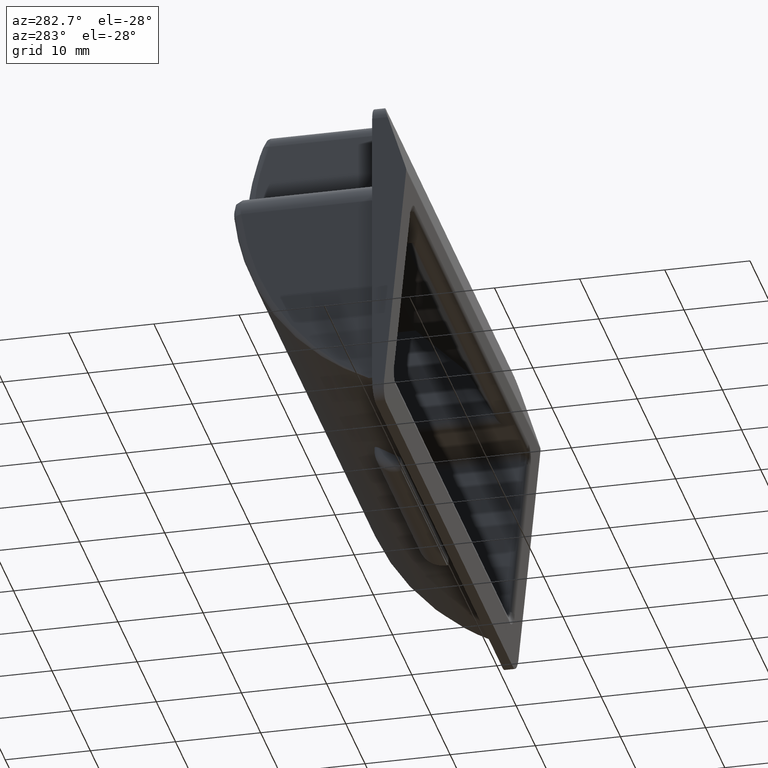
[diagram: clean part render]
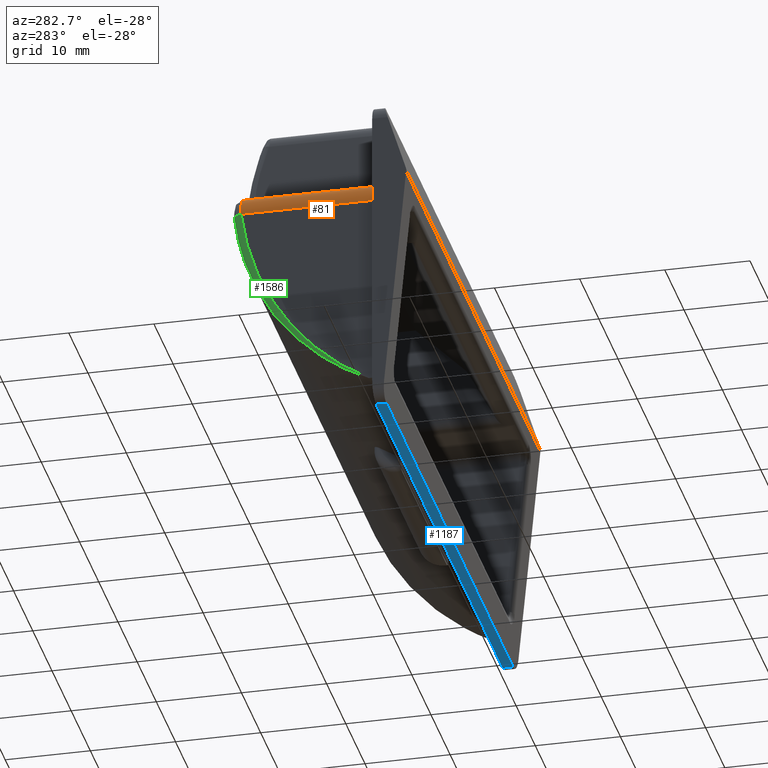
[diagram: same view with three faces highlighted in distinct colors, each labeled with its STEP entity id]
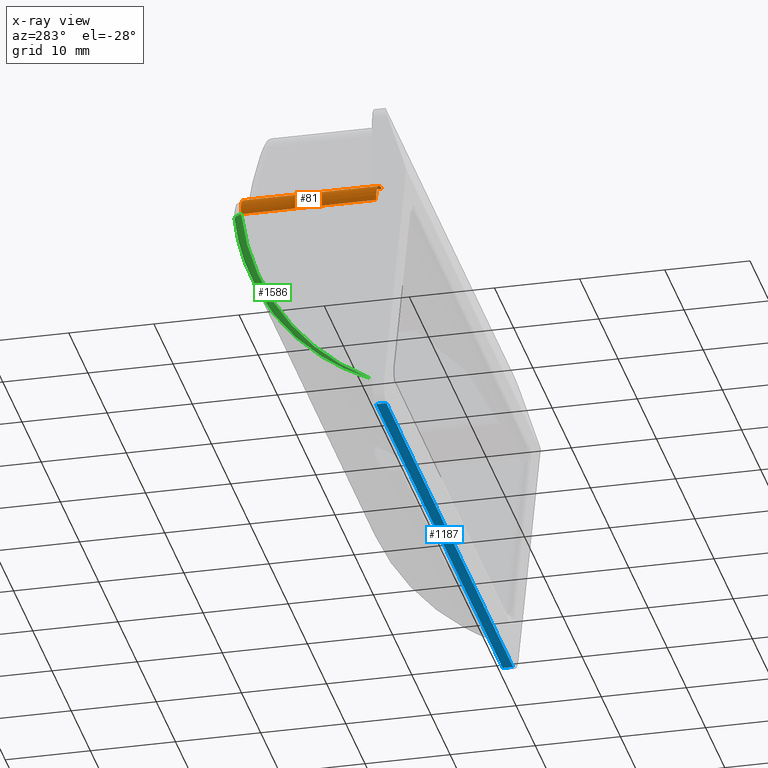
[diagram: x-ray of the same camera — body ghosted, the three highlighted faces saturated]
A machine part, auxiliary view with three faces highlighted in distinct colors.
The next image is the same camera in x-ray (body ghosted, the three faces saturated) — at least one of them is partly hidden behind the body in this view.
Their STEP definitions:

[orange] entity #81 — the highlighted cylindrical surface (edge-blend (fillet) strip) has radius 3 mm, axis along (0, -1, 0).
#21 = CARTESIAN_POINT ( 'NONE',  ( -32.69712364979911700, 15.91943457876399400, 8.112719543238517500 ) ) ;
#81 = ADVANCED_FACE ( 'NONE', ( #1116 ), #1027, .T. ) ;
#173 = DIRECTION ( 'NONE',  ( 0.0000000000000000000, 0.0000000000000000000, -1.000000000000000000 ) ) ;
#175 = CARTESIAN_POINT ( 'NONE',  ( -33.00000000000000000, 15.86270693517948000, 7.082505815775430600 ) ) ;
#186 = VERTEX_POINT ( 'NONE', #1063 ) ;
#466 = CARTESIAN_POINT ( 'NONE',  ( -33.00000000000000000, 1000.000000000000000, 6.749999999999920100 ) ) ;
#548 = DIRECTION ( 'NONE',  ( 0.0000000000000000000, -1.000000000000000000, 0.0000000000000000000 ) ) ;
#594 = B_SPLINE_CURVE_WITH_KNOTS ( 'NONE', 3,
 ( #2583, #1107, #2845, #2831, #2863, #2314, #21, #1217, #175, #1908 ),
 .UNSPECIFIED., .F., .F.,
 ( 4, 2, 2, 2, 4 ),
 ( 0.0000000000000000000, 0.2500000000000000000, 0.5000000000000000000, 0.7500000000000000000, 1.000000000000000000 ),
 .UNSPECIFIED. ) ;
#606 = EDGE_LOOP ( 'NONE', ( #2023, #1290, #1726, #2873 ) ) ;
#690 = VECTOR ( 'NONE', #548, 1000.000000000000000 ) ;
#725 = CARTESIAN_POINT ( 'NONE',  ( -30.00000000000000000, 1000.000000000000000, 6.749999999999920100 ) ) ;
#784 = EDGE_CURVE ( 'NONE', #2377, #3384, #594, .T. ) ;
#977 = DIRECTION ( 'NONE',  ( 0.0000000000000000000, -1.000000000000000000, 0.0000000000000000000 ) ) ;
#1027 = CYLINDRICAL_SURFACE ( 'NONE', #3149, 3.000000000000000000 ) ;
#1063 = CARTESIAN_POINT ( 'NONE',  ( -30.00000000000000000, 0.0000000000000000000, 9.750000000000000000 ) ) ;
#1107 = CARTESIAN_POINT ( 'NONE',  ( -30.45289234762194000, 15.98213638944282700, 9.749999999999918300 ) ) ;
#1116 = FACE_OUTER_BOUND ( 'NONE', #606, .T. ) ;
#1217 = CARTESIAN_POINT ( 'NONE',  ( -32.94412785965531800, 15.88360651230813800, 7.430875672815140800 ) ) ;
#1290 = ORIENTED_EDGE ( 'NONE', *, *, #784, .T. ) ;
#1387 = LINE ( 'NONE', #2692, #690 ) ;
#1417 = DIRECTION ( 'NONE',  ( 0.0000000000000000000, -1.000000000000000000, 0.0000000000000000000 ) ) ;
#1419 = CARTESIAN_POINT ( 'NONE',  ( -30.00000000000000000, 0.0000000000000000000, 6.749999999999920100 ) ) ;
#1422 = EDGE_CURVE ( 'NONE', #3384, #2311, #1737, .T. ) ;
#1554 = CARTESIAN_POINT ( 'NONE',  ( -33.00000000000000000, 0.0000000000000000000, 6.749999999999920100 ) ) ;
#1712 = DIRECTION ( 'NONE',  ( 0.0000000000000000000, 0.0000000000000000000, 1.000000000000000000 ) ) ;
#1726 = ORIENTED_EDGE ( 'NONE', *, *, #1422, .T. ) ;
#1737 = LINE ( 'NONE', #466, #2341 ) ;
#1908 = CARTESIAN_POINT ( 'NONE',  ( -33.00000000000000000, 15.83882181415010100, 6.749999999999920100 ) ) ;
#1923 = EDGE_CURVE ( 'NONE', #2377, #186, #1387, .T. ) ;
#2023 = ORIENTED_EDGE ( 'NONE', *, *, #1923, .F. ) ;
#2254 = CIRCLE ( 'NONE', #3134, 3.000000000000000000 ) ;
#2311 = VERTEX_POINT ( 'NONE', #1554 ) ;
#2314 = CARTESIAN_POINT ( 'NONE',  ( -32.50556349488846300, 15.93436306809107500, 8.445984711561113300 ) ) ;
#2341 = VECTOR ( 'NONE', #1417, 1000.000000000000000 ) ;
#2377 = VERTEX_POINT ( 'NONE', #3152 ) ;
#2501 = CARTESIAN_POINT ( 'NONE',  ( -33.00000000000000000, 15.83882181415010100, 6.749999999999920100 ) ) ;
#2583 = CARTESIAN_POINT ( 'NONE',  ( -30.00000000000000000, 15.98213715926644700, 9.750000000000000000 ) ) ;
#2692 = CARTESIAN_POINT ( 'NONE',  ( -30.00000000000000000, 1000.000000000000000, 9.750000000000000000 ) ) ;
#2724 = EDGE_CURVE ( 'NONE', #186, #2311, #2254, .T. ) ;
#2831 = CARTESIAN_POINT ( 'NONE',  ( -31.65487607590719000, 15.96720636046934200, 9.287743365615357400 ) ) ;
#2845 = CARTESIAN_POINT ( 'NONE',  ( -30.88905108553486300, 15.97915007571880100, 9.646263866370596000 ) ) ;
#2863 = CARTESIAN_POINT ( 'NONE',  ( -31.98461769397786700, 15.95824895894378900, 9.033748054737348100 ) ) ;
#2873 = ORIENTED_EDGE ( 'NONE', *, *, #2724, .F. ) ;
#3134 = AXIS2_PLACEMENT_3D ( 'NONE', #1419, #3261, #1712 ) ;
#3149 = AXIS2_PLACEMENT_3D ( 'NONE', #725, #977, #173 ) ;
#3152 = CARTESIAN_POINT ( 'NONE',  ( -30.00000000000000000, 15.98213715926644700, 9.750000000000000000 ) ) ;
#3261 = DIRECTION ( 'NONE',  ( -0.0000000000000000000, -1.000000000000000000, -0.0000000000000000000 ) ) ;
#3384 = VERTEX_POINT ( 'NONE', #2501 ) ;

[blue] entity #1187 — the highlighted planar face has unit normal (0, 0, 1).
#29 = EDGE_CURVE ( 'NONE', #1060, #2397, #2683, .T. ) ;
#115 = PLANE ( 'NONE',  #653 ) ;
#138 = DIRECTION ( 'NONE',  ( 0.0000000000000000000, 1.000000000000000000, 0.0000000000000000000 ) ) ;
#159 = ORIENTED_EDGE ( 'NONE', *, *, #385, .T. ) ;
#184 = VECTOR ( 'NONE', #628, 1000.000000000000000 ) ;
#189 = DIRECTION ( 'NONE',  ( 0.0000000000000000000, 0.0000000000000000000, 1.000000000000000000 ) ) ;
#385 = EDGE_CURVE ( 'NONE', #2397, #1149, #1615, .T. ) ;
#628 = DIRECTION ( 'NONE',  ( -1.000000000000000000, 0.0000000000000000000, 0.0000000000000000000 ) ) ;
#653 = AXIS2_PLACEMENT_3D ( 'NONE', #665, #189, #1405 ) ;
#665 = CARTESIAN_POINT ( 'NONE',  ( 965.0000000000000000, -1.214746215283180100, -19.75000000000000000 ) ) ;
#805 = VERTEX_POINT ( 'NONE', #1274 ) ;
#1060 = VERTEX_POINT ( 'NONE', #2265 ) ;
#1149 = VERTEX_POINT ( 'NONE', #3337 ) ;
#1187 = ADVANCED_FACE ( 'NONE', ( #2819 ), #115, .F. ) ;
#1274 = CARTESIAN_POINT ( 'NONE',  ( -33.00000000000000000, 0.0000000000000000000, -19.75000000000000000 ) ) ;
#1314 = CARTESIAN_POINT ( 'NONE',  ( 33.00000000000000000, -1.214746215283180100, -19.75000000000000000 ) ) ;
#1405 = DIRECTION ( 'NONE',  ( 1.000000000000000000, 0.0000000000000000000, 0.0000000000000000000 ) ) ;
#1481 = VECTOR ( 'NONE', #138, 1000.000000000000000 ) ;
#1615 = LINE ( 'NONE', #2900, #184 ) ;
#1623 = EDGE_LOOP ( 'NONE', ( #1682, #2565, #159, #3034 ) ) ;
#1682 = ORIENTED_EDGE ( 'NONE', *, *, #2062, .F. ) ;
#1919 = VECTOR ( 'NONE', #3330, 1000.000000000000000 ) ;
#1996 = CARTESIAN_POINT ( 'NONE',  ( 33.00000000000000000, -1.214746215283180100, -19.75000000000000000 ) ) ;
#2062 = EDGE_CURVE ( 'NONE', #1060, #805, #3157, .T. ) ;
#2222 = LINE ( 'NONE', #2515, #1481 ) ;
#2230 = EDGE_CURVE ( 'NONE', #1149, #805, #2222, .T. ) ;
#2235 = DIRECTION ( 'NONE',  ( -1.000000000000000000, 0.0000000000000000000, 0.0000000000000000000 ) ) ;
#2265 = CARTESIAN_POINT ( 'NONE',  ( 33.00000000000000000, 0.0000000000000000000, -19.75000000000000000 ) ) ;
#2397 = VERTEX_POINT ( 'NONE', #1314 ) ;
#2486 = CARTESIAN_POINT ( 'NONE',  ( 965.0000000000000000, 0.0000000000000000000, -19.75000000000000000 ) ) ;
#2515 = CARTESIAN_POINT ( 'NONE',  ( -33.00000000000000000, -1.214746215283180100, -19.75000000000000000 ) ) ;
#2565 = ORIENTED_EDGE ( 'NONE', *, *, #29, .T. ) ;
#2683 = LINE ( 'NONE', #1996, #1919 ) ;
#2819 = FACE_OUTER_BOUND ( 'NONE', #1623, .T. ) ;
#2900 = CARTESIAN_POINT ( 'NONE',  ( 965.0000000000000000, -1.214746215283180100, -19.75000000000000000 ) ) ;
#3034 = ORIENTED_EDGE ( 'NONE', *, *, #2230, .T. ) ;
#3157 = LINE ( 'NONE', #2486, #3234 ) ;
#3234 = VECTOR ( 'NONE', #2235, 1000.000000000000000 ) ;
#3330 = DIRECTION ( 'NONE',  ( -0.0000000000000000000, -1.000000000000000000, -0.0000000000000000000 ) ) ;
#3337 = CARTESIAN_POINT ( 'NONE',  ( -33.00000000000000000, -1.214746215283180100, -19.75000000000000000 ) ) ;

[green] entity #1586 — the highlighted face is a freeform B-spline surface patch.
#176 = CARTESIAN_POINT ( 'NONE',  ( -32.99999999998737400, 16.70300885054731000, 5.435982975352797700 ) ) ;
#200 = CARTESIAN_POINT ( 'NONE',  ( -33.00000000000000000, 14.68729622291481900, 1.006148619472976100 ) ) ;
#263 = EDGE_LOOP ( 'NONE', ( #415, #1934, #2293 ) ) ;
#415 = ORIENTED_EDGE ( 'NONE', *, *, #496, .F. ) ;
#425 = CARTESIAN_POINT ( 'NONE',  ( -33.00000000000000000, 7.534895445766829300, -11.13803999911724000 ) ) ;
#462 = CARTESIAN_POINT ( 'NONE',  ( -33.00000000000000000, 13.46178440313971900, -2.304620486128470300 ) ) ;
#477 = CARTESIAN_POINT ( 'NONE',  ( -32.99999999996208500, 14.73048251072135900, -1.561708938994409900 ) ) ;
#490 = CARTESIAN_POINT ( 'NONE',  ( -33.00000000003788600, 15.58227841751168400, 0.7116720753275827000 ) ) ;
#496 = EDGE_CURVE ( 'NONE', #2766, #1850, #2258, .T. ) ;
#506 = CARTESIAN_POINT ( 'NONE',  ( -33.00000000000000000, 13.91355925580232100, -1.214764601391720200 ) ) ;
#557 = CARTESIAN_POINT ( 'NONE',  ( -33.00000000000000000, 14.66639341863139700, 1.010287550262602300 ) ) ;
#713 = CARTESIAN_POINT ( 'NONE',  ( -33.00000000000000000, 8.352121328734279300, -10.26156907911280100 ) ) ;
#722 = CARTESIAN_POINT ( 'NONE',  ( -33.00000000000000000, 15.83882181415010100, 6.749999999999909400 ) ) ;
#728 = CARTESIAN_POINT ( 'NONE',  ( -32.35937499997225300, 11.08082831297910100, -7.849682348343431000 ) ) ;
#736 = EDGE_CURVE ( 'NONE', #3384, #2766, #1181, .T. ) ;
#739 = CARTESIAN_POINT ( 'NONE',  ( -33.00000000000000000, 15.52224005438175100, 4.426499564255235200 ) ) ;
#753 = CARTESIAN_POINT ( 'NONE',  ( -32.69140625003269900, 5.983033610392419100, -13.03341406688880100 ) ) ;
#768 = CARTESIAN_POINT ( 'NONE',  ( -32.99999999998306800, 15.93671292466537900, 1.875133312841296600 ) ) ;
#806 = CARTESIAN_POINT ( 'NONE',  ( -32.09788617139341200, 14.97129753416764300, -0.9077459231806712700 ) ) ;
#837 = CARTESIAN_POINT ( 'NONE',  ( -32.99999999999999300, 11.52667708045554600, -5.960172067417482300 ) ) ;
#883 = CARTESIAN_POINT ( 'NONE',  ( -32.95833394175724600, 1.570747065032365400, -15.89156144936238700 ) ) ;
#956 = CARTESIAN_POINT ( 'NONE',  ( -33.00000000000000000, 11.85230490039609900, -5.462413615348560300 ) ) ;
#971 = CARTESIAN_POINT ( 'NONE',  ( -32.11328124996140300, 14.73048251070474100, -1.561708939002834900 ) ) ;
#979 = CARTESIAN_POINT ( 'NONE',  ( -32.00781250002545200, 16.49707942486910300, 4.237294799419046000 ) ) ;
#1005 = CARTESIAN_POINT ( 'NONE',  ( -32.11053063719536000, 14.77735347659213400, -1.391334043617856700 ) ) ;
#1032 = CARTESIAN_POINT ( 'NONE',  ( -32.12226334355073500, 14.59953566770989000, -1.806677427390380700 ) ) ;
#1047 = CARTESIAN_POINT ( 'NONE',  ( -32.43573357075636200, 9.935529404512880800, -9.229905427259998500 ) ) ;
#1066 = CARTESIAN_POINT ( 'NONE',  ( -32.14692154667577000, 14.22804050156225800, -2.637826889430956900 ) ) ;
#1096 = CARTESIAN_POINT ( 'NONE',  ( -32.16495073597828000, 13.95922318210752300, -3.192555309369975900 ) ) ;
#1110 = CARTESIAN_POINT ( 'NONE',  ( -32.18518342426629900, 13.65912493573377200, -3.763315262153595700 ) ) ;
#1132 = CARTESIAN_POINT ( 'NONE',  ( -32.18571791029253100, 13.65119848343781300, -3.778353586479034700 ) ) ;
#1181 = B_SPLINE_CURVE_WITH_KNOTS ( 'NONE', 3,
 ( #1762, #1619, #1897, #1291, #1477, #2626, #2051, #2102, #557, #3382, #3114, #2116, #2135, #2148, #2172, #2294, #2303, #2363, #2409, #837, #3195, #2555, #2567, #2808, #2634, #2660, #2897, #2909, #2921, #3035, #2342, #2933, #2950, #3048, #3057, #3069, #3083, #3143, #3165, #3178, #3331, #3344, #3358 ),
 .UNSPECIFIED., .F., .F.,
 ( 4, 1, 2, 2, 1, 2, 2, 1, 2, 2, 1, 1, 2, 2, 1, 1, 2, 2, 1, 1, 2, 2, 1, 1, 2, 2, 4 ),
 ( 0.0000000000000000000, 0.06249999999999963900, 0.09374999999999943100, 0.1249999999999991800, 0.1874999999999986700, 0.2187499999999984200, 0.2499999999999981100, 0.3124999999999975000, 0.3437499999999971700, 0.3749999999999968900, 0.4374999999999963400, 0.4687499999999960000, 0.4843749999999959500, 0.4999999999999958400, 0.5624999999999956700, 0.5937499999999955600, 0.6093749999999955600, 0.6249999999999956700, 0.6874999999999958900, 0.7187499999999961100, 0.7343749999999962300, 0.7499999999999963400, 0.8124999999999971100, 0.8437499999999975600, 0.8593749999999976700, 0.8749999999999977800, 1.000000000000000000 ),
 .UNSPECIFIED. ) ;
#1218 = CARTESIAN_POINT ( 'NONE',  ( -33.00000000002949500, 1.933522285790687700, -15.71233329219640500 ) ) ;
#1226 = CARTESIAN_POINT ( 'NONE',  ( -32.22265624996064300, 13.10331300630586100, -4.820419708547940600 ) ) ;
#1243 = CARTESIAN_POINT ( 'NONE',  ( -32.00000000000000000, 16.83306545036974800, 6.642857142857049100 ) ) ;
#1255 = CARTESIAN_POINT ( 'NONE',  ( -33.00000000002103200, 5.983033610333687400, -13.03341406685945200 ) ) ;
#1256 = CARTESIAN_POINT ( 'NONE',  ( -32.18686987823741700, 13.63411693483496200, -3.810692584404753400 ) ) ;
#1265 = CARTESIAN_POINT ( 'NONE',  ( -32.99999999999571500, 14.23312463766108100, -2.671619303463058400 ) ) ;
#1279 = CARTESIAN_POINT ( 'NONE',  ( -32.18860220030714500, 13.60843336212197100, -3.859205940745189100 ) ) ;
#1291 = CARTESIAN_POINT ( 'NONE',  ( -33.00000000000000000, 15.50141306488617200, 4.428475570965503000 ) ) ;
#1293 = CARTESIAN_POINT ( 'NONE',  ( -32.23339931288334300, 12.94584447670199300, -5.041786039647865500 ) ) ;
#1318 = CARTESIAN_POINT ( 'NONE',  ( -32.20823897334575700, 13.31770558223269800, -4.393407036273936600 ) ) ;
#1345 = CARTESIAN_POINT ( 'NONE',  ( -32.26538173475830700, 12.47334413442856300, -5.819964369642259600 ) ) ;
#1354 = CARTESIAN_POINT ( 'NONE',  ( -32.28819502803330000, 12.13621625080715600, -6.338480330854694400 ) ) ;
#1368 = CARTESIAN_POINT ( 'NONE',  ( -32.31325953037391900, 11.76458455272181600, -6.870616952640507900 ) ) ;
#1394 = CARTESIAN_POINT ( 'NONE',  ( -32.08885943712257900, 15.11093444546394300, -0.5456112022715115000 ) ) ;
#1412 = CARTESIAN_POINT ( 'NONE',  ( -32.99999999999995700, 16.83306545036979800, 6.642857142857042000 ) ) ;
#1477 = CARTESIAN_POINT ( 'NONE',  ( -33.00000000000000700, 15.38967039067029700, 3.853877563615560200 ) ) ;
#1487 = CARTESIAN_POINT ( 'NONE',  ( -33.00000000000000000, 15.71325180490025100, 5.584759628465319800 ) ) ;
#1491 = CARTESIAN_POINT ( 'NONE',  ( -33.00000000000000000, 1.905856945239280000, -15.65628840138394800 ) ) ;
#1519 = CARTESIAN_POINT ( 'NONE',  ( -32.08676767984025700, 15.14345456861964200, -0.4594668332559334600 ) ) ;
#1521 = CARTESIAN_POINT ( 'NONE',  ( -33.00000000000000000, 0.8452325786653289700, -16.25000000000000000 ) ) ;
#1538 = CARTESIAN_POINT ( 'NONE',  ( -33.00000000000000000, 2.925545588159634800, -14.99769232009196100 ) ) ;
#1556 = CARTESIAN_POINT ( 'NONE',  ( -32.08638508796664700, 15.14940901070201200, -0.4436247314269767800 ) ) ;
#1558 = CARTESIAN_POINT ( 'NONE',  ( -32.31389655085074300, 11.75513856594774100, -6.884113112420550400 ) ) ;
#1583 = CARTESIAN_POINT ( 'NONE',  ( -32.31529735817435500, 11.73436518041930300, -6.913740180604082600 ) ) ;
#1586 = ADVANCED_FACE ( 'NONE', ( #1769 ), #1986, .T. ) ;
#1619 = CARTESIAN_POINT ( 'NONE',  ( -33.00000000000000000, 15.77577333886729800, 6.165120926145733400 ) ) ;
#1622 = CARTESIAN_POINT ( 'NONE',  ( -32.31740282563262000, 11.70313922333355600, -6.958186267698564200 ) ) ;
#1637 = CARTESIAN_POINT ( 'NONE',  ( -32.32234537834563100, 11.62981652687872700, -7.061930695507650000 ) ) ;
#1696 = CARTESIAN_POINT ( 'NONE',  ( -32.81803509572033300, 3.925341268151046200, -14.48602051514421200 ) ) ;
#1762 = CARTESIAN_POINT ( 'NONE',  ( -33.00000000000000000, 15.83882181415010100, 6.749999999999920100 ) ) ;
#1769 = FACE_OUTER_BOUND ( 'NONE', #263, .T. ) ;
#1794 = CARTESIAN_POINT ( 'NONE',  ( -32.46474636302329500, 9.495735464020858900, -9.716220784894781900 ) ) ;
#1809 = CARTESIAN_POINT ( 'NONE',  ( -32.99999999999995700, 16.83306545036979800, 6.642857142857042000 ) ) ;
#1811 = CARTESIAN_POINT ( 'NONE',  ( -32.46543531374415200, 9.485289535579569900, -9.727747517495135600 ) ) ;
#1822 = CARTESIAN_POINT ( 'NONE',  ( -32.48613797349868500, 9.170902971915939600, -10.06991771483928800 ) ) ;
#1850 = VERTEX_POINT ( 'NONE', #3188 ) ;
#1861 = CARTESIAN_POINT ( 'NONE',  ( -32.46700796882515000, 9.461440590692435000, -9.754022214793339500 ) ) ;
#1874 = CARTESIAN_POINT ( 'NONE',  ( -32.22311142526452000, 13.09781511345535800, -4.782322274852390400 ) ) ;
#1885 = CARTESIAN_POINT ( 'NONE',  ( -32.46937148028364800, 9.425591185590823400, -9.793445301206386200 ) ) ;
#1897 = CARTESIAN_POINT ( 'NONE',  ( -33.00000000000000000, 15.65685352647670700, 5.292942848616495300 ) ) ;
#1912 = CARTESIAN_POINT ( 'NONE',  ( -32.49597244162988800, 9.021046652179679300, -10.22841614604942400 ) ) ;
#1921 = CARTESIAN_POINT ( 'NONE',  ( -32.37121103321782600, 10.90278720953912000, -8.041976532501838200 ) ) ;
#1934 = ORIENTED_EDGE ( 'NONE', *, *, #736, .F. ) ;
#1948 = CARTESIAN_POINT ( 'NONE',  ( -32.81573775007417000, 3.963166424170680100, -14.46110500753159100 ) ) ;
#1967 = CARTESIAN_POINT ( 'NONE',  ( -33.00000000000000000, 0.8452325786653279700, -16.25000000000000000 ) ) ;
#1986 =( BOUNDED_SURFACE ( )  B_SPLINE_SURFACE ( 2, 3, ( 
 ( #2087, #3049, #3319, #2282, #753, #2568, #2846, #2103, #728, #3400, #1226, #2596, #971, #2040, #3385, #979, #2584, #1243 ),
 ( #2027, #1218, #2832, #3332, #1255, #3115, #3103, #2315, #2295, #2796, #3359, #1265, #477, #490, #768, #2329, #176, #1809 ),
 ( #1521, #1491, #1538, #2809, #2556, #425, #713, #2821, #3070, #956, #2865, #462, #506, #200, #3084, #739, #1487, #722 ) ),
 .UNSPECIFIED., .F., .F., .F. ) 
 B_SPLINE_SURFACE_WITH_KNOTS ( ( 3, 3 ),
 ( 4, 2, 2, 2, 2, 2, 2, 2, 4 ),
 ( 0.0000000000000000000, 1.000000000000000000 ),
 ( 0.4588742050141179600, 0.5844458557239810000, 0.7100175064338439800, 0.8355891571437080700, 0.9611608078535709400, 1.086732458563433900, 1.212304109273298000, 1.337875759983162100, 1.463447410693024000 ),
 .UNSPECIFIED. ) 
 GEOMETRIC_REPRESENTATION_ITEM ( )  RATIONAL_B_SPLINE_SURFACE ( (
 ( 1.000000000000000000, 1.000000000000000000, 1.000000000000000000, 1.000000000000000000, 1.000000000000000000, 1.000000000000000000, 1.000000000000000000, 1.000000000000000000, 1.000000000000000000, 1.000000000000000000, 1.000000000000000000, 1.000000000000000000, 1.000000000000000000, 1.000000000000000000, 1.000000000000000000, 1.000000000000000000, 1.000000000000000000, 1.000000000000000000),
 ( 0.7071067811865480200, 0.7071067811867239900, 0.7071067811865520100, 0.7071067811865520100, 0.7071067811864870700, 0.7071067811864870700, 0.7071067811865030500, 0.7071067811865030500, 0.7071067811865590100, 0.7071067811865590100, 0.7071067811865720000, 0.7071067811865720000, 0.7071067811865670000, 0.7071067811865670000, 0.7071067811865460200, 0.7071067811865460200, 0.7071067811865220400, 0.7071067811865220400),
 ( 1.000000000000000000, 1.000000000000000000, 1.000000000000000000, 1.000000000000000000, 1.000000000000000000, 1.000000000000000000, 1.000000000000000000, 1.000000000000000000, 1.000000000000000000, 1.000000000000000000, 1.000000000000000000, 1.000000000000000000, 1.000000000000000000, 1.000000000000000000, 1.000000000000000000, 1.000000000000000000, 1.000000000000000000, 1.000000000000000000) ) ) 
 REPRESENTATION_ITEM ( '' )  SURFACE ( )  );
#2024 = EDGE_CURVE ( 'NONE', #3384, #1850, #2479, .T. ) ;
#2027 = CARTESIAN_POINT ( 'NONE',  ( -32.99999999999995000, 0.8452325786653281900, -16.24999999999987900 ) ) ;
#2040 = CARTESIAN_POINT ( 'NONE',  ( -32.05859375003859700, 15.58227841752830000, 0.7116720753359689900 ) ) ;
#2051 = CARTESIAN_POINT ( 'NONE',  ( -33.00000000000000000, 15.13700475863470800, 2.707218383568633400 ) ) ;
#2063 = CARTESIAN_POINT ( 'NONE',  ( -32.52962353874679000, 8.506421688946048200, -10.75801697906572600 ) ) ;
#2074 = CARTESIAN_POINT ( 'NONE',  ( -32.00000000000000000, 16.83306545036974800, 6.642857142857049100 ) ) ;
#2076 = CARTESIAN_POINT ( 'NONE',  ( -32.92195729284426900, 2.190561918094061900, -15.54814847064577400 ) ) ;
#2087 = CARTESIAN_POINT ( 'NONE',  ( -33.00000000000000000, 0.8452325786653289700, -16.25000000000000000 ) ) ;
#2102 = CARTESIAN_POINT ( 'NONE',  ( -33.00000000000001400, 14.91977689914973500, 1.852975077344936300 ) ) ;
#2103 = CARTESIAN_POINT ( 'NONE',  ( -32.41015625007100500, 10.32324753599923800, -8.801174459379128100 ) ) ;
#2116 = CARTESIAN_POINT ( 'NONE',  ( -33.00000000000000000, 14.10613172385436800, -0.6620412508842280500 ) ) ;
#2126 = CARTESIAN_POINT ( 'NONE',  ( -32.57185986687172600, 7.855950068631276700, -11.39496655154886000 ) ) ;
#2135 = CARTESIAN_POINT ( 'NONE',  ( -32.99999999999999300, 13.79116537491346700, -1.488119553449146000 ) ) ;
#2138 = CARTESIAN_POINT ( 'NONE',  ( -32.20094259226369400, 13.42563463304881200, -4.199019184889335700 ) ) ;
#2148 = CARTESIAN_POINT ( 'NONE',  ( -33.00000000000000000, 13.44091553744686300, -2.298415475030696000 ) ) ;
#2172 = CARTESIAN_POINT ( 'NONE',  ( -33.00000000000000700, 13.19957487057443900, -2.835105560310980700 ) ) ;
#2177 = CARTESIAN_POINT ( 'NONE',  ( -32.60156326194226800, 7.394501680363078800, -11.82017383497065100 ) ) ;
#2201 = CARTESIAN_POINT ( 'NONE',  ( -32.51593122345196500, 8.716299639415202800, -10.54583665388882500 ) ) ;
#2258 = B_SPLINE_CURVE_WITH_KNOTS ( 'NONE', 3,
 ( #3146, #883, #2076, #3224, #3155, #3105, #2971, #2983, #2914, #1696, #1948, #2849, #2704, #2627, #2637, #2599, #2572, #2448, #2723, #2436, #2428, #2380, #2345, #2414, #2399, #2365, #2332, #2177, #2126, #2063, #2201, #1912, #1822, #2664, #1885, #1861, #1811, #1794, #1047, #2388, #1921, #2463, #3440, #2867, #1637, #1622, #1583, #1558, #1368, #1354, #1345, #1293, #1874, #1318, #2138, #2316, #1279, #1256, #1132, #1110, #1096, #1066, #1032, #1005, #806, #3129, #1394, #2536, #1519, #1556, #2396, #2684, #2074 ),
 .UNSPECIFIED., .F., .F.,
 ( 4, 2, 2, 2, 1, 1, 1, 1, 2, 2, 2, 2, 1, 1, 1, 1, 2, 2, 2, 2, 1, 1, 1, 2, 2, 2, 2, 1, 1, 1, 2, 2, 2, 2, 1, 1, 1, 2, 2, 2, 1, 1, 1, 1, 2, 2, 4 ),
 ( 0.0000000000000000000, 0.06249999999998498400, 0.09374999999997744900, 0.1093749999999736700, 0.1171874999999717400, 0.1210937499999707200, 0.1230468749999701500, 0.1240234374999699700, 0.1245117187499698700, 0.1249999999999697900, 0.1874999999999672500, 0.2187499999999660300, 0.2343749999999654400, 0.2421874999999651100, 0.2460937499999649200, 0.2480468749999648600, 0.2490234374999648300, 0.2499999999999648600, 0.3124999999999647500, 0.3437499999999646900, 0.3593749999999646900, 0.3671874999999646400, 0.3710937499999646400, 0.3730468749999646900, 0.3749999999999648100, 0.4374999999999706300, 0.4687499999999736900, 0.4843749999999753000, 0.4921874999999759600, 0.4960937499999762400, 0.4980468749999763000, 0.4999999999999764600, 0.5624999999999789100, 0.5937499999999801300, 0.6093749999999807900, 0.6171874999999811300, 0.6210937499999813500, 0.6230468749999813500, 0.6249999999999812400, 0.6874999999999842300, 0.7187499999999857900, 0.7343749999999864600, 0.7421874999999867900, 0.7460937499999870100, 0.7480468749999871200, 0.7499999999999872300, 1.000000000000000000 ),
 .UNSPECIFIED. ) ;
#2282 = CARTESIAN_POINT ( 'NONE',  ( -32.75195312505320500, 5.012762166781490300, -13.76678927558642100 ) ) ;
#2293 = ORIENTED_EDGE ( 'NONE', *, *, #2024, .T. ) ;
#2294 = CARTESIAN_POINT ( 'NONE',  ( -33.00000000000000700, 13.07592301336506000, -3.099762178723347400 ) ) ;
#2295 = CARTESIAN_POINT ( 'NONE',  ( -33.00000000001676200, 11.08082831297238300, -7.849682348351544500 ) ) ;
#2303 = CARTESIAN_POINT ( 'NONE',  ( -33.00000000000000700, 12.68757309585004300, -3.900080198343728100 ) ) ;
#2315 = CARTESIAN_POINT ( 'NONE',  ( -32.99999999997892500, 10.32324753597274900, -8.801174459330683300 ) ) ;
#2316 = CARTESIAN_POINT ( 'NONE',  ( -32.19267487620334100, 13.54807544328993700, -3.972436568081892300 ) ) ;
#2329 = CARTESIAN_POINT ( 'NONE',  ( -33.00000000001680400, 16.49707942487019700, 4.237294799414842200 ) ) ;
#2332 = CARTESIAN_POINT ( 'NONE',  ( -32.63330076934460800, 6.895893471352980700, -12.24875706119148300 ) ) ;
#2342 = CARTESIAN_POINT ( 'NONE',  ( -33.00000000000000000, 7.412402418867222000, -11.23222141688686500 ) ) ;
#2345 = CARTESIAN_POINT ( 'NONE',  ( -32.63853709922511800, 6.813581234576298900, -12.31923604959560600 ) ) ;
#2363 = CARTESIAN_POINT ( 'NONE',  ( -33.00000000000000000, 12.27661333135375300, -4.687028681137532800 ) ) ;
#2365 = CARTESIAN_POINT ( 'NONE',  ( -32.63362682363365500, 6.890770200212425100, -12.25315596869153900 ) ) ;
#2380 = CARTESIAN_POINT ( 'NONE',  ( -32.64431731853968400, 6.722626281575983900, -12.39659017364645300 ) ) ;
#2388 = CARTESIAN_POINT ( 'NONE',  ( -32.40905283009288200, 10.33678354238198000, -8.755038896875417400 ) ) ;
#2396 = CARTESIAN_POINT ( 'NONE',  ( -32.02864624025263400, 16.04872650117698600, 1.956587916145818600 ) ) ;
#2399 = CARTESIAN_POINT ( 'NONE',  ( -32.63444263709118300, 6.877950098720871700, -12.26415615938990200 ) ) ;
#2409 = CARTESIAN_POINT ( 'NONE',  ( -33.00000000000000000, 11.75759304055762300, -5.581738554950476300 ) ) ;
#2414 = CARTESIAN_POINT ( 'NONE',  ( -32.63566784710128800, 6.858694000054733000, -12.28066412206820200 ) ) ;
#2428 = CARTESIAN_POINT ( 'NONE',  ( -32.65604461743724600, 6.537783125560707700, -12.55211428485736700 ) ) ;
#2436 = CARTESIAN_POINT ( 'NONE',  ( -32.66638263409537800, 6.374264366231446200, -12.68673205429650300 ) ) ;
#2448 = CARTESIAN_POINT ( 'NONE',  ( -32.70198687432029800, 5.808450615214400000, -13.13997985110503700 ) ) ;
#2463 = CARTESIAN_POINT ( 'NONE',  ( -32.35896031994617800, 11.08547864308170400, -7.804157230458028700 ) ) ;
#2479 =( BOUNDED_CURVE ( )  B_SPLINE_CURVE ( 2, ( #3258, #1412, #2480 ),
 .UNSPECIFIED., .F., .F. ) 
 B_SPLINE_CURVE_WITH_KNOTS ( ( 3, 3 ),
 ( 0.0000000000000000000, 1.000000000000000000 ),
 .UNSPECIFIED. ) 
 CURVE ( )  GEOMETRIC_REPRESENTATION_ITEM ( )  RATIONAL_B_SPLINE_CURVE ( ( 1.000000000000000000, 0.7071067811865220400, 1.000000000000000000 ) ) 
 REPRESENTATION_ITEM ( '' )  );
#2480 = CARTESIAN_POINT ( 'NONE',  ( -32.00000000000000000, 16.83306545036974800, 6.642857142857049100 ) ) ;
#2501 = CARTESIAN_POINT ( 'NONE',  ( -33.00000000000000000, 15.83882181415010100, 6.749999999999920100 ) ) ;
#2536 = CARTESIAN_POINT ( 'NONE',  ( -32.08760251901815500, 15.13047000220319300, -0.4939219246157965900 ) ) ;
#2555 = CARTESIAN_POINT ( 'NONE',  ( -33.00000000000000000, 11.29261567520221400, -6.335405750910374500 ) ) ;
#2556 = CARTESIAN_POINT ( 'NONE',  ( -33.00000000000000000, 5.793533112746740000, -12.78937332464136000 ) ) ;
#2567 = CARTESIAN_POINT ( 'NONE',  ( -33.00000000000000700, 10.89051027394135200, -6.962630175353898400 ) ) ;
#2568 = CARTESIAN_POINT ( 'NONE',  ( -32.57421874996719400, 7.824095123360009100, -11.45091287930274000 ) ) ;
#2572 = CARTESIAN_POINT ( 'NONE',  ( -32.74715288994530500, 5.084096629655930700, -13.69145912571736200 ) ) ;
#2584 = CARTESIAN_POINT ( 'NONE',  ( -32.00000000026945200, 16.70300885074929900, 5.435982975327950100 ) ) ;
#2596 = CARTESIAN_POINT ( 'NONE',  ( -32.14648437503935000, 14.23312463766919900, -2.671619303469285400 ) ) ;
#2599 = CARTESIAN_POINT ( 'NONE',  ( -32.77929767315790600, 4.562801927589289300, -14.06445654527907900 ) ) ;
#2626 = CARTESIAN_POINT ( 'NONE',  ( -33.00000000000000700, 15.33012887076422400, 3.569165542553233400 ) ) ;
#2627 = CARTESIAN_POINT ( 'NONE',  ( -32.81379732941685700, 3.995103319814955700, -14.44001198552302700 ) ) ;
#2634 = CARTESIAN_POINT ( 'NONE',  ( -33.00000000000000000, 9.761478341569723900, -8.529939159208298700 ) ) ;
#2637 = CARTESIAN_POINT ( 'NONE',  ( -32.81374358507287100, 3.995987815063196000, -14.43942747515905000 ) ) ;
#2660 = CARTESIAN_POINT ( 'NONE',  ( -33.00000000000000000, 9.485547465976559100, -8.879938640807898400 ) ) ;
#2664 = CARTESIAN_POINT ( 'NONE',  ( -32.47491804221110100, 9.341409391597618800, -9.885507782267684000 ) ) ;
#2684 = CARTESIAN_POINT ( 'NONE',  ( -32.00000040691930500, 16.58533552849837300, 4.344020758520224800 ) ) ;
#2704 = CARTESIAN_POINT ( 'NONE',  ( -32.81411906485348600, 3.989808607960433100, -14.44351216239794800 ) ) ;
#2723 = CARTESIAN_POINT ( 'NONE',  ( -32.68744006231085600, 6.040310045461775500, -12.95747362806893800 ) ) ;
#2766 = VERTEX_POINT ( 'NONE', #1967 ) ;
#2796 = CARTESIAN_POINT ( 'NONE',  ( -32.99999999998309600, 12.47086392568857100, -5.859300852578763300 ) ) ;
#2808 = CARTESIAN_POINT ( 'NONE',  ( -32.99999999999999300, 10.38664986329809100, -7.699093224337506300 ) ) ;
#2809 = CARTESIAN_POINT ( 'NONE',  ( -33.00000000000000000, 4.869393981784070600, -13.56422133526064000 ) ) ;
#2821 = CARTESIAN_POINT ( 'NONE',  ( -33.00000000000000000, 9.870713142977850300, -8.422186501565059700 ) ) ;
#2832 = CARTESIAN_POINT ( 'NONE',  ( -32.99999999999155900, 2.988001279074648900, -15.10625217196198400 ) ) ;
#2846 = CARTESIAN_POINT ( 'NONE',  ( -32.51757812492889600, 8.694877570254101700, -10.60179345237198100 ) ) ;
#2849 = CARTESIAN_POINT ( 'NONE',  ( -32.81460263652809300, 3.981850228211009300, -14.44877133766030400 ) ) ;
#2865 = CARTESIAN_POINT ( 'NONE',  ( -33.00000000000000000, 12.43116167858059900, -4.428449217731619900 ) ) ;
#2867 = CARTESIAN_POINT ( 'NONE',  ( -32.33234966501271400, 11.48131482115740300, -7.269555019121721500 ) ) ;
#2897 = CARTESIAN_POINT ( 'NONE',  ( -33.00000000000000000, 9.299815721486933000, -9.111921106845249700 ) ) ;
#2909 = CARTESIAN_POINT ( 'NONE',  ( -33.00000000000000000, 9.206827718932988300, -9.226308284017205700 ) ) ;
#2914 = CARTESIAN_POINT ( 'NONE',  ( -32.82273826122659700, 3.847856382879536700, -14.53683710261140900 ) ) ;
#2921 = CARTESIAN_POINT ( 'NONE',  ( -32.99999999999999300, 8.729775303548386500, -9.804155815626282700 ) ) ;
#2933 = CARTESIAN_POINT ( 'NONE',  ( -33.00000000000000000, 7.094208974077340600, -11.54808758206510600 ) ) ;
#2950 = CARTESIAN_POINT ( 'NONE',  ( -33.00000000000001400, 6.880440934188684700, -11.75708336634869000 ) ) ;
#2971 = CARTESIAN_POINT ( 'NONE',  ( -32.83563792383947800, 3.634873479361608000, -14.67465316175087300 ) ) ;
#2983 = CARTESIAN_POINT ( 'NONE',  ( -32.82695550174368300, 3.778280613093420100, -14.58205907011053500 ) ) ;
#3035 = CARTESIAN_POINT ( 'NONE',  ( -33.00000000000000700, 8.137643484742811900, -10.47859294353428300 ) ) ;
#3048 = CARTESIAN_POINT ( 'NONE',  ( -33.00000000000000700, 6.773629165880174200, -11.85994471339918700 ) ) ;
#3049 = CARTESIAN_POINT ( 'NONE',  ( -32.93749988161835100, 1.933522280366725100, -15.71233329494910300 ) ) ;
#3057 = CARTESIAN_POINT ( 'NONE',  ( -33.00000000000000700, 6.226554732764344500, -12.37875445580028700 ) ) ;
#3069 = CARTESIAN_POINT ( 'NONE',  ( -33.00000000000000000, 5.552467011109284200, -12.97969657196556500 ) ) ;
#3070 = CARTESIAN_POINT ( 'NONE',  ( -33.00000000000000000, 10.57208428950354000, -7.459287656249400400 ) ) ;
#3083 = CARTESIAN_POINT ( 'NONE',  ( -33.00000000000000700, 4.735234132491624900, -13.64294395173867800 ) ) ;
#3084 = CARTESIAN_POINT ( 'NONE',  ( -33.00000000000000000, 15.00926827906120100, 2.137200081528369800 ) ) ;
#3103 = CARTESIAN_POINT ( 'NONE',  ( -33.00000000002106800, 8.694877570280587200, -10.60179345242049500 ) ) ;
#3105 = CARTESIAN_POINT ( 'NONE',  ( -32.84175679331971100, 3.533595110450057100, -14.73925093427302700 ) ) ;
#3114 = CARTESIAN_POINT ( 'NONE',  ( -33.00000000000000000, 14.39757574711135000, 0.1745586390029370300 ) ) ;
#3115 = CARTESIAN_POINT ( 'NONE',  ( -32.99999999997896100, 7.824095123418731900, -11.45091287933217000 ) ) ;
#3129 = CARTESIAN_POINT ( 'NONE',  ( -32.09182486139556500, 15.06493977068933700, -0.6662649635244813900 ) ) ;
#3143 = CARTESIAN_POINT ( 'NONE',  ( -33.00000000000000000, 4.378392069508503700, -13.91908173826578100 ) ) ;
#3146 = CARTESIAN_POINT ( 'NONE',  ( -33.00000000000000000, 0.8452325786653279700, -16.25000000000000000 ) ) ;
#3155 = CARTESIAN_POINT ( 'NONE',  ( -32.86110516600998500, 3.212382821125277800, -14.94103809912198100 ) ) ;
#3165 = CARTESIAN_POINT ( 'NONE',  ( -33.00000000000000000, 4.139030827360019600, -14.10137113139084200 ) ) ;
#3178 = CARTESIAN_POINT ( 'NONE',  ( -33.00000000000000000, 4.019588624211210400, -14.19089800866244700 ) ) ;
#3188 = CARTESIAN_POINT ( 'NONE',  ( -32.00000000000000000, 16.83306545036974800, 6.642857142857049100 ) ) ;
#3195 = CARTESIAN_POINT ( 'NONE',  ( -33.00000000000000000, 11.37084895313908300, -6.211346947659940600 ) ) ;
#3224 = CARTESIAN_POINT ( 'NONE',  ( -32.87532643346931100, 2.975077520114842100, -15.08624657964797900 ) ) ;
#3258 = CARTESIAN_POINT ( 'NONE',  ( -33.00000000000000000, 15.83882181415010100, 6.749999999999920100 ) ) ;
#3319 = CARTESIAN_POINT ( 'NONE',  ( -32.87499999994680200, 2.988001279042980000, -15.10625217194285100 ) ) ;
#3331 = CARTESIAN_POINT ( 'NONE',  ( -33.00000000000000700, 2.920519071057983100, -15.00142737978809600 ) ) ;
#3332 = CARTESIAN_POINT ( 'NONE',  ( -33.00000000000838400, 5.012762166749726400, -13.76678927556726300 ) ) ;
#3344 = CARTESIAN_POINT ( 'NONE',  ( -33.00000000000000000, 1.903106668955657900, -15.65777510389595600 ) ) ;
#3358 = CARTESIAN_POINT ( 'NONE',  ( -33.00000000000000000, 0.8452325786653279700, -16.25000000000000000 ) ) ;
#3359 = CARTESIAN_POINT ( 'NONE',  ( -33.00000000000412800, 13.10331300631396400, -4.820419708554116900 ) ) ;
#3382 = CARTESIAN_POINT ( 'NONE',  ( -33.00000000000000000, 14.48943651583402200, 0.4510638164613470200 ) ) ;
#3384 = VERTEX_POINT ( 'NONE', #2501 ) ;
#3385 = CARTESIAN_POINT ( 'NONE',  ( -32.03710937497444900, 15.93671292466639900, 1.875133312837099900 ) ) ;
#3400 = CARTESIAN_POINT ( 'NONE',  ( -32.26562500002764700, 12.47086392568184000, -5.859300852586920300 ) ) ;
#3440 = CARTESIAN_POINT ( 'NONE',  ( -32.34112907856881900, 11.35081877543907700, -7.447709224764732700 ) ) ;